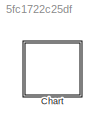
MODEL slx_5fc1722c25df
KIND model
CONFIG AbsTol = auto
CONFIG EnableMultiTasking = off
CONFIG FixedStep = auto
CONFIG MaxStep = auto
CONFIG MinStep = auto
CONFIG RelTol = 1e-3
CONFIG SampleTimeConstraint = Unconstrained
CONFIG Solver = VariableStepAuto
CONFIG SolverName = VariableStepAuto
CONFIG StartTime = 0.0
CONFIG StopTime = 10.0
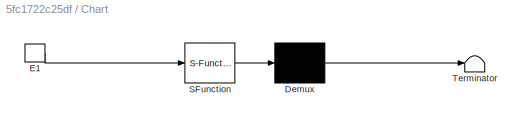
BLOCK [SubSystem] Chart
  ErrorFcn = Stateflow.Translate.translate
  PermitHierarchicalResolution = ExplicitOnly
  Ports = [0, 0, 0, 1]
  RequestExecContextInheritance = off
  SFBlockType = Chart
  TreatAsAtomicUnit = on
  Variant = off
BLOCK [Demux] Chart/ Demux 
  Outputs = 1
  Ports = [1, 1]
BLOCK [S-Function] Chart/ SFunction 
  EnableBusSupport = on
  FunctionName = sf_sfun
  PortCounts = [1 1]
  Ports = [1, 1]
  SFcnIsStateOwnerBlock = off
  SFunctionDeploymentMode = off
  Tag = Stateflow S-Function integrationTest1 3
BLOCK [Terminator] Chart/ Terminator 
BLOCK [TriggerPort] Chart/E1
  Ports = [0, 1]
  ShowOutputPort = on
  StatesWhenEnabling = held
  VariantControl = (inherit)
CHART Chart states=10 transitions=15
  STATE_LABEL 'A'
  STATE_LABEL 'A'
  STATE_LABEL 'A\nen:\ncountVal = count(loc1>0);\ninVal = in(A.A.A);\ntickVal = 1;\non after(1, tick):\ntickVal = tickVal+1;\non after(loc1+loc2, tick):\ntickVal = tickVal+1;\non after(1, E1):\ntickVal = tickVal+1;\non after(loc1+loc2, E1):\ntickVal = tickVal+1;\n'  <repeated x3 — deduplicated; at blocks: Chart>
  STATE_LABEL 'B'
  STATE_LABEL 'B'
  STATE_LABEL 'A\n '
  STATE_LABEL 'B'
  STATE_LABEL 'C'
  STATE_LABEL 'D'
  STATE_LABEL 'C'
  STATE_LABEL 'at(3, sec)[tickVal==1]'
  STATE_LABEL 'at(3,sec){tickVfal=20}'
  STATE_LABEL 'A'
  STATE_LABEL 'B'
  STATE_LABEL 'B'
  STATE_LABEL 'B'
  STATE_LABEL 'A\n '
  STATE_LABEL 'B'
  STATE_LABEL 'C'
  STATE_LABEL 'D'
  STATE_LABEL 'A\n '
  STATE_LABEL 'B'
  STATE_LABEL 'C'
  STATE_LABEL 'D'
  STATE_LABEL 'C'
